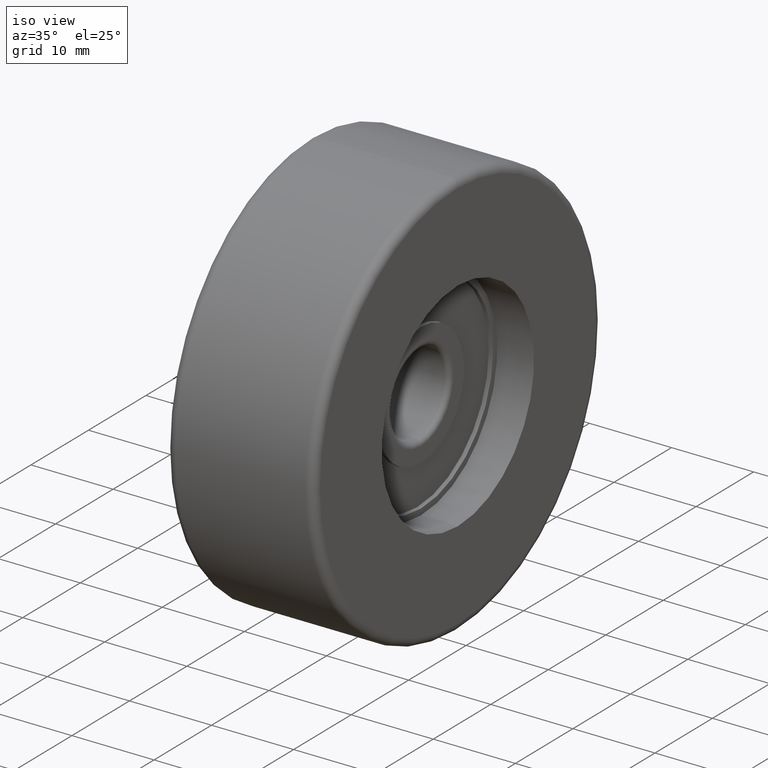
[diagram: clean part render]
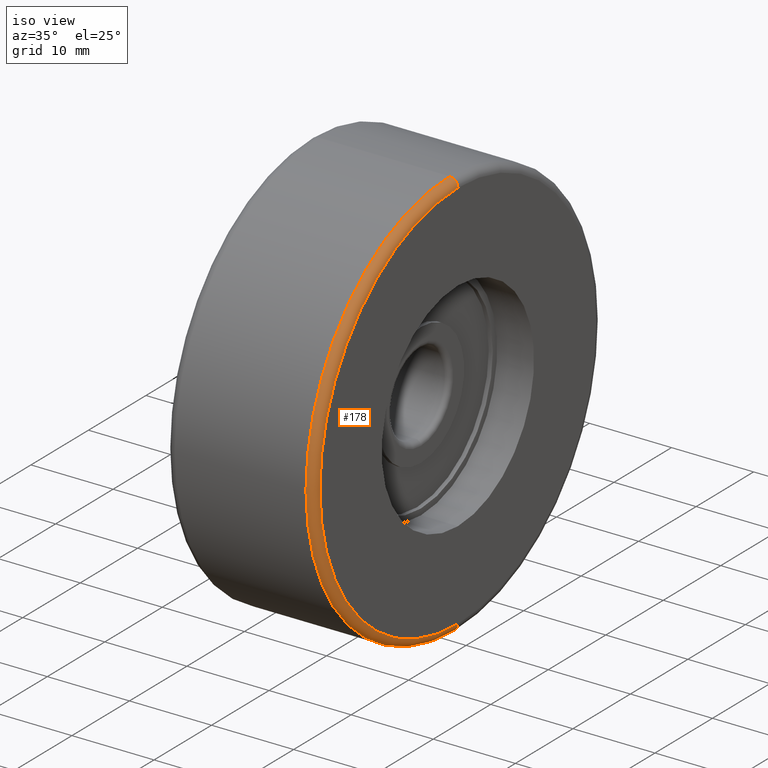
[diagram: same view with one face highlighted and labeled with its STEP entity id]
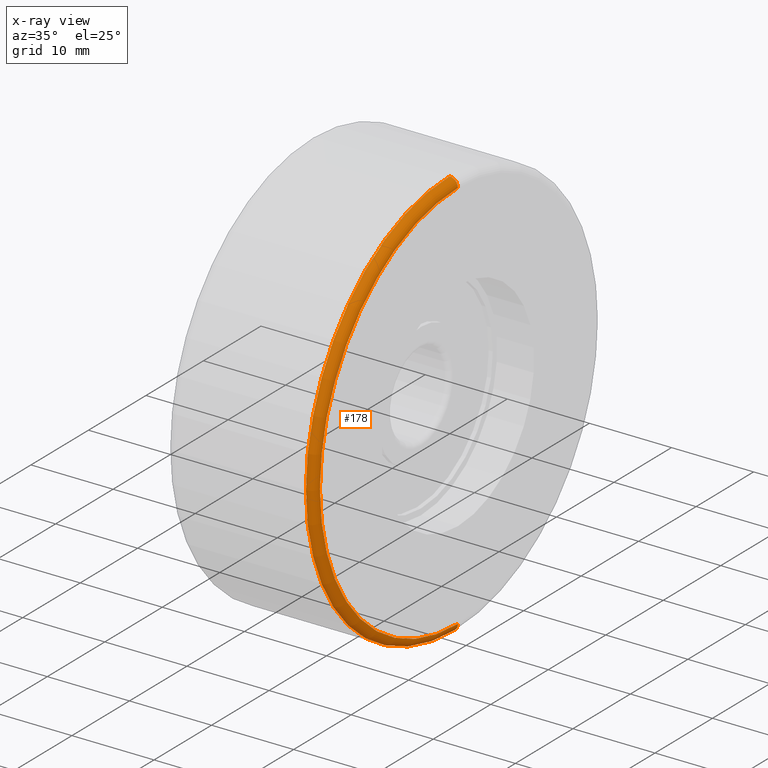
[diagram: x-ray of the same camera — body ghosted, the highlighted face saturated]
A machine part, iso view. The second image highlights one B-rep face of the part: STEP entity #178.
The next image is the same camera in x-ray: the body ghosted, the highlighted face saturated — about 0% of this face is hidden behind the body in this view.
In plain terms, the highlighted toroidal blend (fillet) surface has major radius 24 mm and minor (blend) radius 1 mm.
Its self-contained STEP definition (entity closure, byte-faithful):
#11 = ORIENTED_EDGE ( 'NONE', *, *, #287, .F. ) ;
#38 = VERTEX_POINT ( 'NONE', #833 ) ;
#47 = EDGE_CURVE ( 'NONE', #962, #38, #802, .T. ) ;
#79 = CARTESIAN_POINT ( 'NONE',  ( 8.000000000000000000, 0.0000000000000000000, 0.0000000000000000000 ) ) ;
#169 = FACE_OUTER_BOUND ( 'NONE', #1183, .T. ) ;
#178 = ADVANCED_FACE ( 'NONE', ( #169 ), #1455, .T. ) ;
#287 = EDGE_CURVE ( 'NONE', #313, #962, #701, .T. ) ;
#313 = VERTEX_POINT ( 'NONE', #466 ) ;
#353 = CIRCLE ( 'NONE', #1197, 1.000000000000000888 ) ;
#354 = DIRECTION ( 'NONE',  ( 0.0000000000000000000, -1.224646799147353454E-16, 1.000000000000000000 ) ) ;
#377 = EDGE_CURVE ( 'NONE', #1394, #38, #353, .T. ) ;
#382 = DIRECTION ( 'NONE',  ( 0.0000000000000000000, 0.0000000000000000000, -1.000000000000000000 ) ) ;
#392 = DIRECTION ( 'NONE',  ( 0.0000000000000000000, -1.000000000000000000, 0.0000000000000000000 ) ) ;
#418 = DIRECTION ( 'NONE',  ( -1.000000000000000000, -0.0000000000000000000, -0.0000000000000000000 ) ) ;
#448 = DIRECTION ( 'NONE',  ( 0.0000000000000000000, 0.0000000000000000000, 1.000000000000000000 ) ) ;
#466 = CARTESIAN_POINT ( 'NONE',  ( 9.000000000000000000, 3.000384657911015469E-15, -24.00000000000000000 ) ) ;
#496 = ORIENTED_EDGE ( 'NONE', *, *, #913, .F. ) ;
#579 = CARTESIAN_POINT ( 'NONE',  ( 9.000000000000000000, 0.0000000000000000000, 24.00000000000000000 ) ) ;
#611 = AXIS2_PLACEMENT_3D ( 'NONE', #1345, #1133, #354 ) ;
#660 = CIRCLE ( 'NONE', #1032, 24.00000000000000000 ) ;
#701 = CIRCLE ( 'NONE', #611, 1.000000000000000888 ) ;
#706 = CARTESIAN_POINT ( 'NONE',  ( 8.000000000000000000, 0.0000000000000000000, 24.00000000000000000 ) ) ;
#749 = CARTESIAN_POINT ( 'NONE',  ( 8.000000000000000000, 0.0000000000000000000, 0.0000000000000000000 ) ) ;
#802 = CIRCLE ( 'NONE', #1251, 25.00000000000000000 ) ;
#833 = CARTESIAN_POINT ( 'NONE',  ( 8.000000000000000000, 0.0000000000000000000, 25.00000000000000000 ) ) ;
#908 = DIRECTION ( 'NONE',  ( 1.000000000000000000, 0.0000000000000000000, 0.0000000000000000000 ) ) ;
#913 = EDGE_CURVE ( 'NONE', #1394, #313, #660, .T. ) ;
#962 = VERTEX_POINT ( 'NONE', #1142 ) ;
#988 = DIRECTION ( 'NONE',  ( -1.000000000000000000, -0.0000000000000000000, -0.0000000000000000000 ) ) ;
#996 = ORIENTED_EDGE ( 'NONE', *, *, #377, .T. ) ;
#1032 = AXIS2_PLACEMENT_3D ( 'NONE', #1349, #908, #1355 ) ;
#1133 = DIRECTION ( 'NONE',  ( -0.0000000000000000000, 1.000000000000000000, 1.224646799147353207E-16 ) ) ;
#1142 = CARTESIAN_POINT ( 'NONE',  ( 8.000000000000000000, 3.061616997868383043E-15, -25.00000000000000000 ) ) ;
#1183 = EDGE_LOOP ( 'NONE', ( #11, #496, #996, #1258 ) ) ;
#1197 = AXIS2_PLACEMENT_3D ( 'NONE', #706, #392, #382 ) ;
#1251 = AXIS2_PLACEMENT_3D ( 'NONE', #749, #418, #1314 ) ;
#1258 = ORIENTED_EDGE ( 'NONE', *, *, #47, .F. ) ;
#1268 = AXIS2_PLACEMENT_3D ( 'NONE', #79, #988, #448 ) ;
#1314 = DIRECTION ( 'NONE',  ( 0.0000000000000000000, 0.0000000000000000000, 1.000000000000000000 ) ) ;
#1345 = CARTESIAN_POINT ( 'NONE',  ( 8.000000000000000000, 2.939152317953647894E-15, -24.00000000000000000 ) ) ;
#1349 = CARTESIAN_POINT ( 'NONE',  ( 9.000000000000000000, 0.0000000000000000000, 0.0000000000000000000 ) ) ;
#1355 = DIRECTION ( 'NONE',  ( 0.0000000000000000000, 0.0000000000000000000, 1.000000000000000000 ) ) ;
#1394 = VERTEX_POINT ( 'NONE', #579 ) ;
#1455 = TOROIDAL_SURFACE ( 'NONE', #1268, 24.00000000000000000, 1.000000000000000000 ) ;